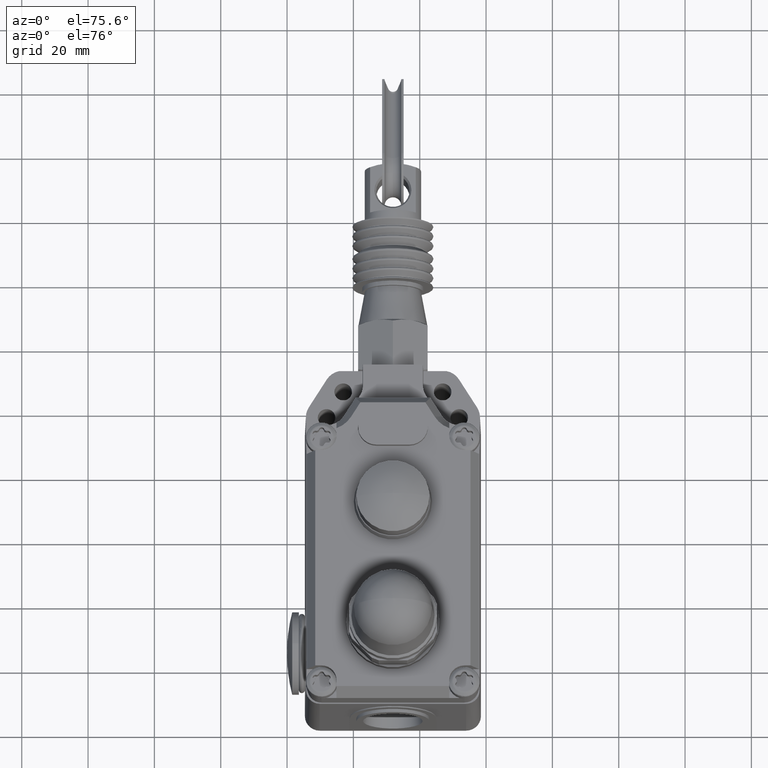
[diagram: clean part render]
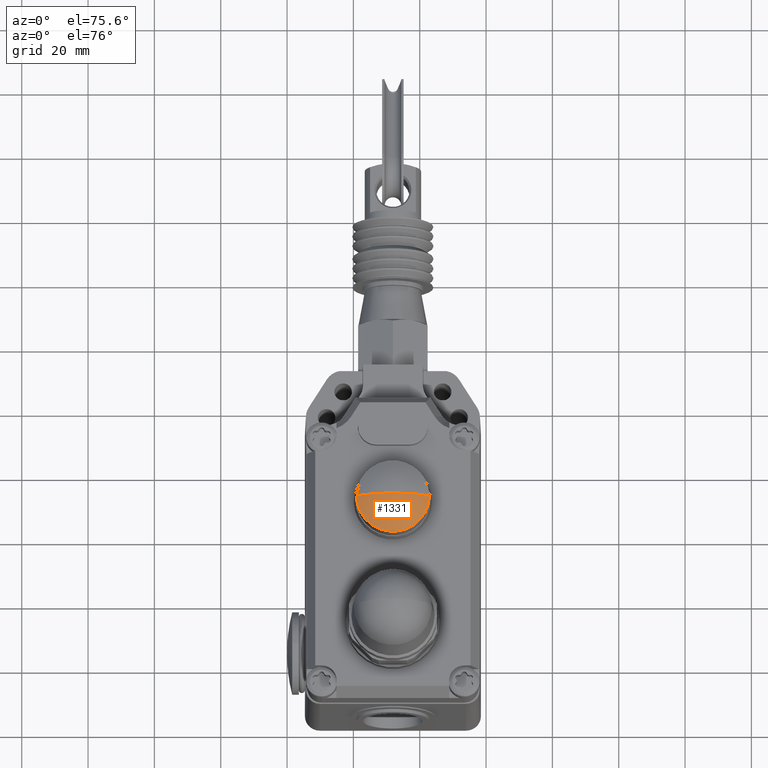
[diagram: same view with one face highlighted and labeled with its STEP entity id]
A machine part, auxiliary view. The second image highlights one B-rep face of the part: STEP entity #1331.
In plain terms, the highlighted spherical surface has radius 19 mm.
Its self-contained STEP definition (entity closure, byte-faithful):
#1331=ADVANCED_FACE('',(#2894),#2895,.T.);
#2894=FACE_OUTER_BOUND('',#4704,.T.);
#2895=SPHERICAL_SURFACE('',#4705,18.99999999975);
#4704=EDGE_LOOP('',(#8517,#8518,#8519));
#4705=AXIS2_PLACEMENT_3D('',#8520,#8521,#8522);
#8517=ORIENTED_EDGE('',*,*,#11138,.T.);
#8518=ORIENTED_EDGE('',*,*,#11140,.T.);
#8519=ORIENTED_EDGE('',*,*,#11145,.T.);
#8520=CARTESIAN_POINT('',(31.9104298117,61.54,34.5000000003));
#8521=DIRECTION('',(0.0,0.0,1.0));
#8522=DIRECTION('',(1.0,0.0,0.0));
#11138=EDGE_CURVE('',#13405,#13406,#13407,.T.);
#11140=EDGE_CURVE('',#13406,#13408,#13410,.T.);
#11145=EDGE_CURVE('',#13408,#13405,#13417,.T.);
#13405=VERTEX_POINT('',#16665);
#13406=VERTEX_POINT('',#16666);
#13407=CIRCLE('',#16667,18.99999999975);
#13408=VERTEX_POINT('',#16668);
#13410=CIRCLE('',#16670,18.99999999975);
#13417=CIRCLE('',#16679,11.0000000000503);
#16665=CARTESIAN_POINT('',(42.9104298117503,61.54,49.9919333847971));
#16666=CARTESIAN_POINT('',(31.9104298117,61.54,53.50000000005));
#16667=AXIS2_PLACEMENT_3D('',#20885,#20886,#20887);
#16668=CARTESIAN_POINT('',(20.9104298116497,61.54,49.9919333847971));
#16670=AXIS2_PLACEMENT_3D('',#20891,#20892,#20893);
#16679=AXIS2_PLACEMENT_3D('',#20899,#20900,#20901);
#20885=CARTESIAN_POINT('',(31.9104298117,61.54,34.5000000003));
#20886=DIRECTION('',(0.0,-1.0,0.0));
#20887=DIRECTION('',(0.0,0.0,1.0));
#20891=CARTESIAN_POINT('',(31.9104298117,61.54,34.5000000003));
#20892=DIRECTION('',(0.0,-1.0,0.0));
#20893=DIRECTION('',(0.0,0.0,1.0));
#20899=CARTESIAN_POINT('',(31.9104298117,61.54,49.9919333847971));
#20900=DIRECTION('',(0.0,0.0,1.0));
#20901=DIRECTION('',(-1.0,0.0,0.0));